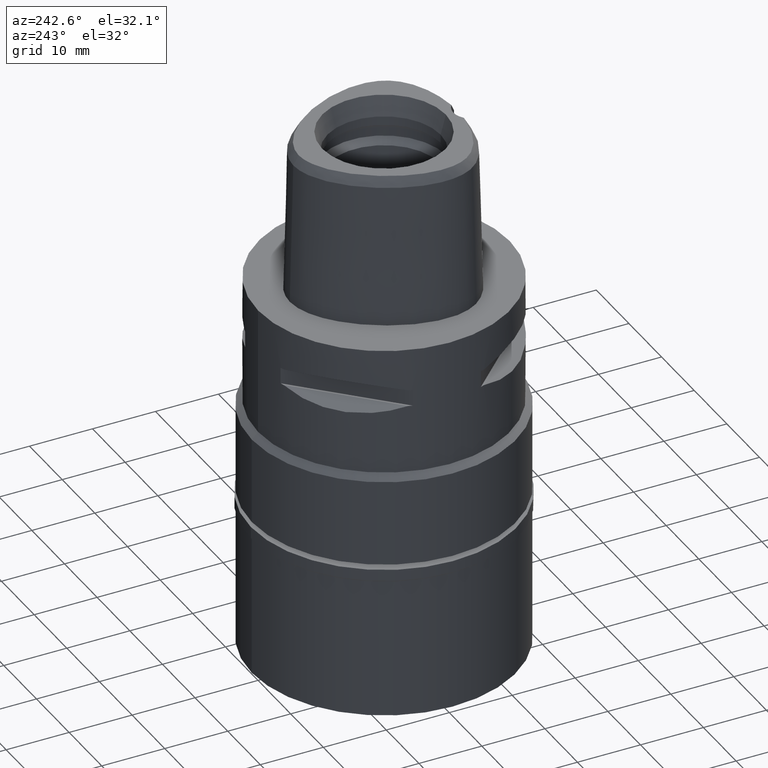
[diagram: clean part render]
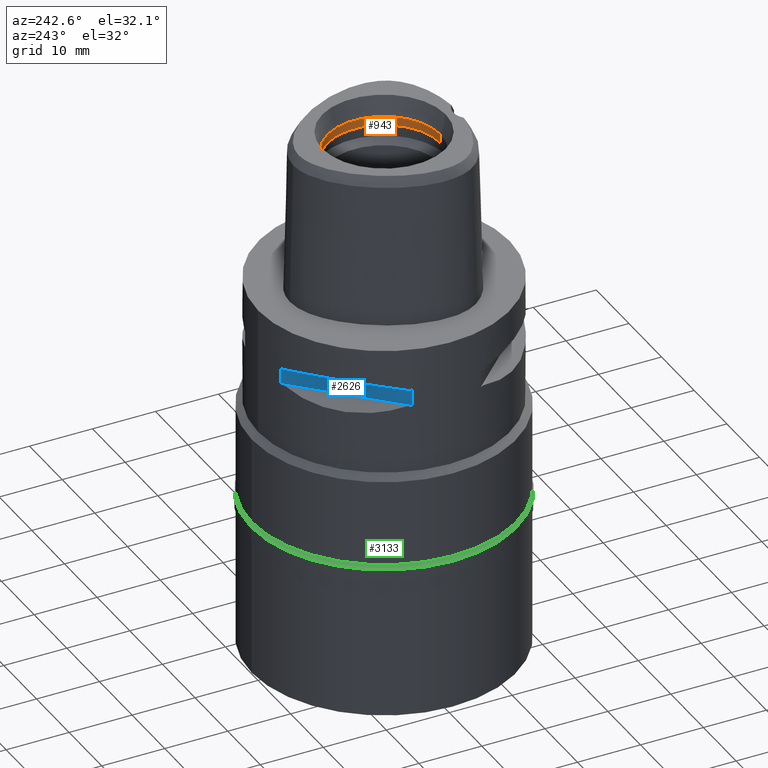
[diagram: same view with three faces highlighted in distinct colors, each labeled with its STEP entity id]
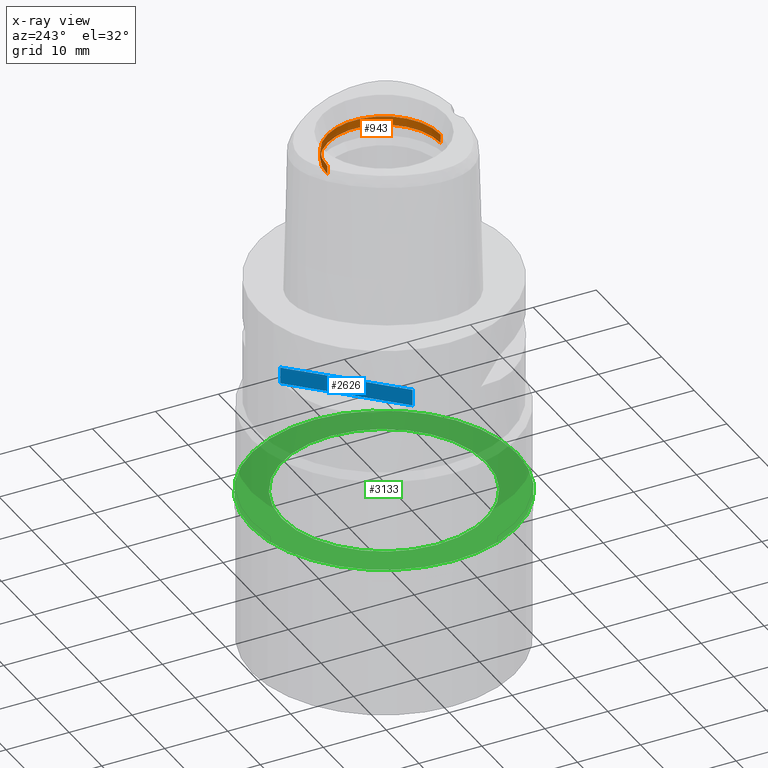
[diagram: x-ray of the same camera — body ghosted, the three highlighted faces saturated]
A machine part, auxiliary view with three faces highlighted in distinct colors.
The next image is the same camera in x-ray (body ghosted, the three faces saturated) — at least one of them is partly hidden behind the body in this view.
Their STEP definitions:

[orange] entity #943 — the highlighted cylindrical surface (partial cylindrical patch) has radius 9 mm, axis along (0, 0, -1).
#37 = DIRECTION ( 'NONE',  ( 0.0000000000000000000, -1.000000000000000000, 0.0000000000000000000 ) ) ;
#86 = ORIENTED_EDGE ( 'NONE', *, *, #3184, .T. ) ;
#123 = VERTEX_POINT ( 'NONE', #2700 ) ;
#276 = FACE_OUTER_BOUND ( 'NONE', #3500, .T. ) ;
#436 = CARTESIAN_POINT ( 'NONE',  ( 0.0000000000000000000, 1.499580005555999857E-14, 20.89999999999999858 ) ) ;
#467 = AXIS2_PLACEMENT_3D ( 'NONE', #436, #1166, #37 ) ;
#599 = AXIS2_PLACEMENT_3D ( 'NONE', #4203, #626, #3140 ) ;
#626 = DIRECTION ( 'NONE',  ( 0.0000000000000000000, 0.0000000000000000000, -1.000000000000000000 ) ) ;
#798 = VERTEX_POINT ( 'NONE', #4042 ) ;
#825 = CIRCLE ( 'NONE', #3315, 9.000000000000000000 ) ;
#943 = ADVANCED_FACE ( 'NONE', ( #276 ), #2756, .F. ) ;
#1097 = LINE ( 'NONE', #3702, #4234 ) ;
#1166 = DIRECTION ( 'NONE',  ( 0.0000000000000000000, 0.0000000000000000000, 1.000000000000000000 ) ) ;
#1394 = CARTESIAN_POINT ( 'NONE',  ( 0.0000000000000000000, -9.000000000000000000, 19.50000000000000000 ) ) ;
#1404 = CARTESIAN_POINT ( 'NONE',  ( 0.0000000000000000000, -9.000000000000000000, 19.50000000000000000 ) ) ;
#1668 = EDGE_CURVE ( 'NONE', #123, #3563, #825, .T. ) ;
#2397 = DIRECTION ( 'NONE',  ( 0.0000000000000000000, -7.739840514528999735E-14, 1.000000000000000000 ) ) ;
#2700 = CARTESIAN_POINT ( 'NONE',  ( 0.0000000000000000000, 9.000000000000000000, 19.50000000000000000 ) ) ;
#2737 = VERTEX_POINT ( 'NONE', #3232 ) ;
#2756 = CYLINDRICAL_SURFACE ( 'NONE', #599, 9.000000000000000000 ) ;
#2904 = ORIENTED_EDGE ( 'NONE', *, *, #4027, .T. ) ;
#3140 = DIRECTION ( 'NONE',  ( 0.0000000000000000000, -1.000000000000000000, 0.0000000000000000000 ) ) ;
#3184 = EDGE_CURVE ( 'NONE', #3563, #798, #4221, .T. ) ;
#3201 = DIRECTION ( 'NONE',  ( 0.0000000000000000000, 7.866723145914999673E-14, 1.000000000000000000 ) ) ;
#3232 = CARTESIAN_POINT ( 'NONE',  ( 0.0000000000000000000, 9.000000000000000000, 20.89999999999999858 ) ) ;
#3274 = CARTESIAN_POINT ( 'NONE',  ( 0.0000000000000000000, 1.451206456990000256E-14, 19.50000000000000000 ) ) ;
#3315 = AXIS2_PLACEMENT_3D ( 'NONE', #3274, #4584, #4231 ) ;
#3500 = EDGE_LOOP ( 'NONE', ( #2904, #4207, #4481, #86 ) ) ;
#3563 = VERTEX_POINT ( 'NONE', #1394 ) ;
#3702 = CARTESIAN_POINT ( 'NONE',  ( 0.0000000000000000000, 9.000000000000000000, 19.50000000000000000 ) ) ;
#3929 = CIRCLE ( 'NONE', #467, 9.000000000000000000 ) ;
#4027 = EDGE_CURVE ( 'NONE', #798, #2737, #3929, .T. ) ;
#4042 = CARTESIAN_POINT ( 'NONE',  ( 0.0000000000000000000, -9.000000000000000000, 20.89999999999999858 ) ) ;
#4055 = EDGE_CURVE ( 'NONE', #123, #2737, #1097, .T. ) ;
#4203 = CARTESIAN_POINT ( 'NONE',  ( 0.0000000000000000000, 1.533257792532000136E-14, 25.19999999999999929 ) ) ;
#4207 = ORIENTED_EDGE ( 'NONE', *, *, #4055, .F. ) ;
#4221 = LINE ( 'NONE', #1404, #4310 ) ;
#4231 = DIRECTION ( 'NONE',  ( 0.0000000000000000000, 1.000000000000000000, 0.0000000000000000000 ) ) ;
#4234 = VECTOR ( 'NONE', #2397, 1000.000000000000000 ) ;
#4310 = VECTOR ( 'NONE', #3201, 1000.000000000000000 ) ;
#4481 = ORIENTED_EDGE ( 'NONE', *, *, #1668, .T. ) ;
#4584 = DIRECTION ( 'NONE',  ( 0.0000000000000000000, 0.0000000000000000000, -1.000000000000000000 ) ) ;

[blue] entity #2626 — the highlighted planar face has unit normal (0.7071, -0.7071, 0).
#67 = CARTESIAN_POINT ( 'NONE',  ( -19.24906036483000094, 5.428966298580000682, -6.700000000000000178 ) ) ;
#144 = VECTOR ( 'NONE', #2627, 1000.000000000000000 ) ;
#357 = ORIENTED_EDGE ( 'NONE', *, *, #536, .T. ) ;
#479 = EDGE_CURVE ( 'NONE', #689, #3285, #901, .T. ) ;
#536 = EDGE_CURVE ( 'NONE', #1754, #689, #3089, .T. ) ;
#554 = CARTESIAN_POINT ( 'NONE',  ( -21.17784809654000000, 3.500178566873000108, -6.700000000000000178 ) ) ;
#568 = EDGE_CURVE ( 'NONE', #4586, #1754, #4438, .T. ) ;
#667 = ORIENTED_EDGE ( 'NONE', *, *, #568, .T. ) ;
#689 = VERTEX_POINT ( 'NONE', #1297 ) ;
#745 = VECTOR ( 'NONE', #4177, 1000.000000000000114 ) ;
#894 = DIRECTION ( 'NONE',  ( -0.7071067811865474617, -0.7071067811865474617, 0.0000000000000000000 ) ) ;
#901 = LINE ( 'NONE', #4079, #1876 ) ;
#995 = VECTOR ( 'NONE', #894, 1000.000000000000114 ) ;
#1209 = CARTESIAN_POINT ( 'NONE',  ( -5.428966298580000682, 19.24906036483000094, -6.700000000000000178 ) ) ;
#1215 = AXIS2_PLACEMENT_3D ( 'NONE', #554, #2012, #1241 ) ;
#1241 = DIRECTION ( 'NONE',  ( 0.0000000000000000000, 0.0000000000000000000, -1.000000000000000000 ) ) ;
#1297 = CARTESIAN_POINT ( 'NONE',  ( -19.24906036483000094, 5.428966298580000682, -9.299999999999998934 ) ) ;
#1456 = ORIENTED_EDGE ( 'NONE', *, *, #2981, .F. ) ;
#1754 = VERTEX_POINT ( 'NONE', #2421 ) ;
#1876 = VECTOR ( 'NONE', #3395, 1000.000000000000000 ) ;
#2000 = CARTESIAN_POINT ( 'NONE',  ( -5.428966298580000682, 19.24906036483000094, -6.700000000000000178 ) ) ;
#2012 = DIRECTION ( 'NONE',  ( 0.7071067811865475727, -0.7071067811865475727, 0.0000000000000000000 ) ) ;
#2421 = CARTESIAN_POINT ( 'NONE',  ( -5.428966298580000682, 19.24906036483000094, -9.299999999999998934 ) ) ;
#2626 = ADVANCED_FACE ( 'NONE', ( #3827 ), #2687, .F. ) ;
#2627 = DIRECTION ( 'NONE',  ( 0.0000000000000000000, 0.0000000000000000000, -1.000000000000000000 ) ) ;
#2687 = PLANE ( 'NONE',  #1215 ) ;
#2743 = CARTESIAN_POINT ( 'NONE',  ( -5.428966298580000682, 19.24906036483000094, -6.700000000000000178 ) ) ;
#2981 = EDGE_CURVE ( 'NONE', #4586, #3285, #3011, .T. ) ;
#3011 = LINE ( 'NONE', #2000, #995 ) ;
#3089 = LINE ( 'NONE', #4509, #745 ) ;
#3285 = VERTEX_POINT ( 'NONE', #67 ) ;
#3395 = DIRECTION ( 'NONE',  ( 0.0000000000000000000, 0.0000000000000000000, 1.000000000000000000 ) ) ;
#3444 = EDGE_LOOP ( 'NONE', ( #1456, #667, #357, #3569 ) ) ;
#3569 = ORIENTED_EDGE ( 'NONE', *, *, #479, .T. ) ;
#3827 = FACE_OUTER_BOUND ( 'NONE', #3444, .T. ) ;
#4079 = CARTESIAN_POINT ( 'NONE',  ( -19.24906036483000094, 5.428966298580000682, -9.299999999999998934 ) ) ;
#4177 = DIRECTION ( 'NONE',  ( -0.7071067811865474617, -0.7071067811865474617, 0.0000000000000000000 ) ) ;
#4438 = LINE ( 'NONE', #1209, #144 ) ;
#4509 = CARTESIAN_POINT ( 'NONE',  ( -5.428966298580000682, 19.24906036483000094, -9.299999999999998934 ) ) ;
#4586 = VERTEX_POINT ( 'NONE', #2743 ) ;

[green] entity #3133 — the highlighted planar face has unit normal (0, 0, -1).
#81 = CIRCLE ( 'NONE', #911, 16.25000000000000000 ) ;
#158 = CIRCLE ( 'NONE', #3614, 16.25000000000000000 ) ;
#269 = DIRECTION ( 'NONE',  ( 0.0000000000000000000, -1.000000000000000000, 0.0000000000000000000 ) ) ;
#342 = CARTESIAN_POINT ( 'NONE',  ( 0.0000000000000000000, 0.0000000000000000000, 0.0000000000000000000 ) ) ;
#855 = EDGE_CURVE ( 'NONE', #2412, #3632, #1439, .T. ) ;
#911 = AXIS2_PLACEMENT_3D ( 'NONE', #1564, #3704, #4044 ) ;
#1146 = EDGE_CURVE ( 'NONE', #3632, #2412, #1950, .T. ) ;
#1437 = EDGE_LOOP ( 'NONE', ( #3774, #1788 ) ) ;
#1439 = CIRCLE ( 'NONE', #2028, 21.14999999999999858 ) ;
#1481 = EDGE_CURVE ( 'NONE', #4186, #1921, #81, .T. ) ;
#1564 = CARTESIAN_POINT ( 'NONE',  ( 0.0000000000000000000, 0.0000000000000000000, 0.0000000000000000000 ) ) ;
#1729 = EDGE_CURVE ( 'NONE', #1921, #4186, #158, .T. ) ;
#1736 = AXIS2_PLACEMENT_3D ( 'NONE', #342, #3560, #269 ) ;
#1788 = ORIENTED_EDGE ( 'NONE', *, *, #1729, .F. ) ;
#1824 = AXIS2_PLACEMENT_3D ( 'NONE', #3907, #2802, #4249 ) ;
#1921 = VERTEX_POINT ( 'NONE', #4568 ) ;
#1950 = CIRCLE ( 'NONE', #1736, 21.14999999999999858 ) ;
#2014 = CARTESIAN_POINT ( 'NONE',  ( 0.0000000000000000000, -21.14999999999999858, 0.0000000000000000000 ) ) ;
#2023 = PLANE ( 'NONE',  #1824 ) ;
#2028 = AXIS2_PLACEMENT_3D ( 'NONE', #3446, #3469, #2684 ) ;
#2412 = VERTEX_POINT ( 'NONE', #4384 ) ;
#2452 = EDGE_LOOP ( 'NONE', ( #4579, #3026 ) ) ;
#2684 = DIRECTION ( 'NONE',  ( 0.0000000000000000000, 1.000000000000000000, 0.0000000000000000000 ) ) ;
#2723 = CARTESIAN_POINT ( 'NONE',  ( 0.0000000000000000000, 0.0000000000000000000, 0.0000000000000000000 ) ) ;
#2802 = DIRECTION ( 'NONE',  ( 0.0000000000000000000, 0.0000000000000000000, -1.000000000000000000 ) ) ;
#3026 = ORIENTED_EDGE ( 'NONE', *, *, #1146, .F. ) ;
#3059 = DIRECTION ( 'NONE',  ( 0.0000000000000000000, -1.000000000000000000, 0.0000000000000000000 ) ) ;
#3132 = FACE_OUTER_BOUND ( 'NONE', #2452, .T. ) ;
#3133 = ADVANCED_FACE ( 'NONE', ( #3132, #4574 ), #2023, .F. ) ;
#3446 = CARTESIAN_POINT ( 'NONE',  ( 0.0000000000000000000, 0.0000000000000000000, 0.0000000000000000000 ) ) ;
#3469 = DIRECTION ( 'NONE',  ( 0.0000000000000000000, 0.0000000000000000000, -1.000000000000000000 ) ) ;
#3485 = DIRECTION ( 'NONE',  ( 0.0000000000000000000, 0.0000000000000000000, 1.000000000000000000 ) ) ;
#3536 = CARTESIAN_POINT ( 'NONE',  ( 0.0000000000000000000, 16.25000000000000000, 0.0000000000000000000 ) ) ;
#3560 = DIRECTION ( 'NONE',  ( 0.0000000000000000000, 0.0000000000000000000, -1.000000000000000000 ) ) ;
#3614 = AXIS2_PLACEMENT_3D ( 'NONE', #2723, #3485, #3059 ) ;
#3632 = VERTEX_POINT ( 'NONE', #2014 ) ;
#3704 = DIRECTION ( 'NONE',  ( 0.0000000000000000000, 0.0000000000000000000, 1.000000000000000000 ) ) ;
#3774 = ORIENTED_EDGE ( 'NONE', *, *, #1481, .F. ) ;
#3907 = CARTESIAN_POINT ( 'NONE',  ( 0.0000000000000000000, 0.0000000000000000000, 0.0000000000000000000 ) ) ;
#4044 = DIRECTION ( 'NONE',  ( 0.0000000000000000000, 1.000000000000000000, 0.0000000000000000000 ) ) ;
#4186 = VERTEX_POINT ( 'NONE', #3536 ) ;
#4249 = DIRECTION ( 'NONE',  ( 0.0000000000000000000, -1.000000000000000000, 0.0000000000000000000 ) ) ;
#4384 = CARTESIAN_POINT ( 'NONE',  ( 0.0000000000000000000, 21.14999999999999858, 0.0000000000000000000 ) ) ;
#4568 = CARTESIAN_POINT ( 'NONE',  ( 0.0000000000000000000, -16.25000000000000000, 0.0000000000000000000 ) ) ;
#4574 = FACE_BOUND ( 'NONE', #1437, .T. ) ;
#4579 = ORIENTED_EDGE ( 'NONE', *, *, #855, .F. ) ;